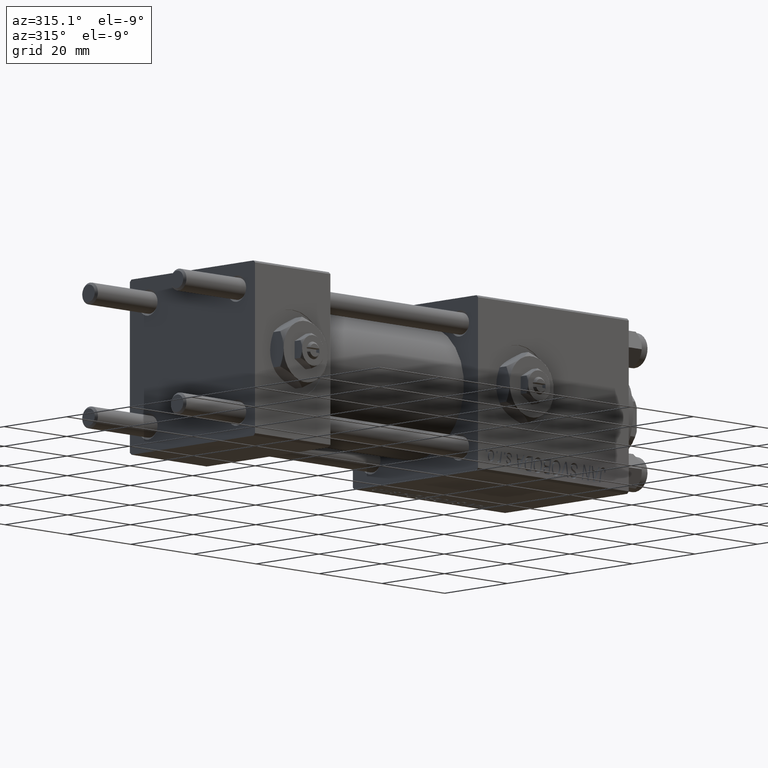
[diagram: clean part render]
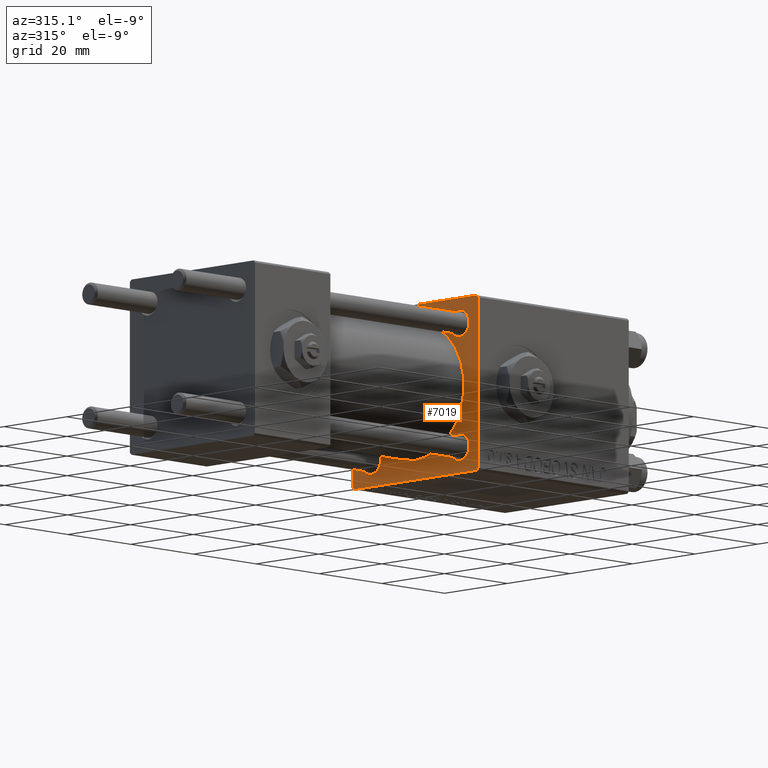
[diagram: same view with one face highlighted and labeled with its STEP entity id]
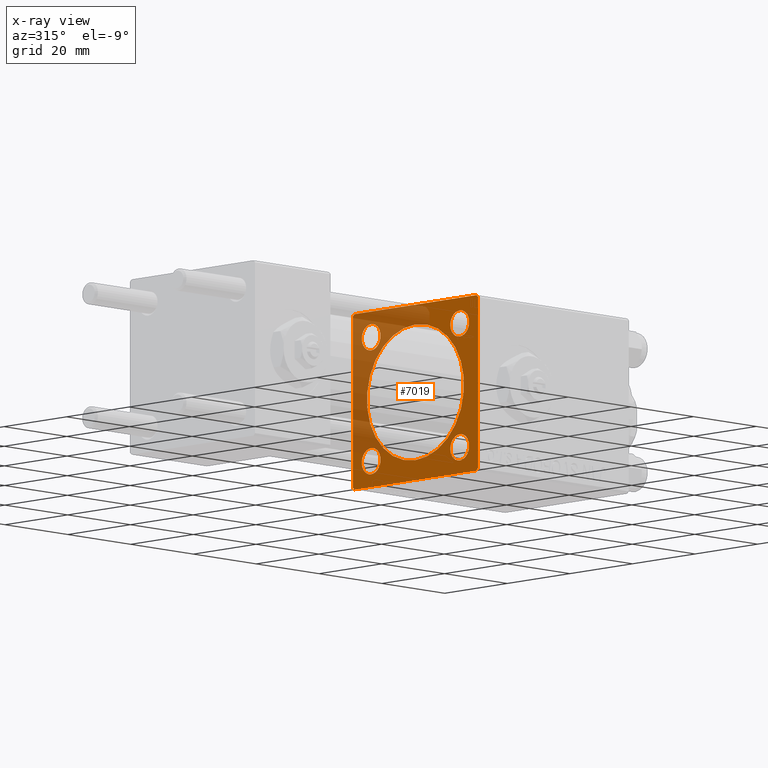
[diagram: x-ray of the same camera — body ghosted, the highlighted face saturated]
A machine part, auxiliary view. The second image highlights one B-rep face of the part: STEP entity #7019.
The next image is the same camera in x-ray: the body ghosted, the highlighted face saturated — about 37% of this face is hidden behind the body in this view.
In plain terms, the highlighted planar face has unit normal (-1, 0, 0).
Its self-contained STEP definition (entity closure, byte-faithful):
#448 = VERTEX_POINT ( 'NONE', #35024 ) ;
#474 = CARTESIAN_POINT ( 'NONE',  ( 71.00000000000001421, 0.000000000000000000, 0.000000000000000000 ) ) ;
#567 = CARTESIAN_POINT ( 'NONE',  ( 71.00000000000001421, -14.15000000000000036, 17.15000000000000568 ) ) ;
#714 = VECTOR ( 'NONE', #23946, 1000.000000000000000 ) ;
#786 = CARTESIAN_POINT ( 'NONE',  ( 71.00000000000001421, 19.74999999999999645, -19.74999999999999645 ) ) ;
#1168 = EDGE_CURVE ( 'NONE', #1655, #20145, #23216, .T. ) ;
#1187 = FACE_OUTER_BOUND ( 'NONE', #35015, .T. ) ;
#1655 = VERTEX_POINT ( 'NONE', #21031 ) ;
#1743 = EDGE_CURVE ( 'NONE', #8582, #1655, #32588, .T. ) ;
#1891 = AXIS2_PLACEMENT_3D ( 'NONE', #474, #51926, #15957 ) ;
#2912 = CIRCLE ( 'NONE', #29694, 15.50000000000000000 ) ;
#3056 = DIRECTION ( 'NONE',  ( 1.000000000000000000, 0.000000000000000000, 0.000000000000000000 ) ) ;
#4071 = VERTEX_POINT ( 'NONE', #13871 ) ;
#4143 = EDGE_CURVE ( 'NONE', #5210, #31174, #21702, .T. ) ;
#4344 = DIRECTION ( 'NONE',  ( 0.000000000000000000, 0.000000000000000000, 1.000000000000000000 ) ) ;
#4367 = CARTESIAN_POINT ( 'NONE',  ( 71.00000000000001421, 14.15000000000000036, 11.14999999999999858 ) ) ;
#4619 = DIRECTION ( 'NONE',  ( -0.000000000000000000, 0.000000000000000000, 1.000000000000000000 ) ) ;
#4828 = EDGE_LOOP ( 'NONE', ( #26816, #28573 ) ) ;
#5063 = ORIENTED_EDGE ( 'NONE', *, *, #37640, .F. ) ;
#5137 = CARTESIAN_POINT ( 'NONE',  ( 71.00000000000001421, 19.99999999999999645, 20.00000000000000000 ) ) ;
#5210 = VERTEX_POINT ( 'NONE', #4367 ) ;
#5384 = CARTESIAN_POINT ( 'NONE',  ( 71.00000000000001421, 0.000000000000000000, 0.000000000000000000 ) ) ;
#5505 = VECTOR ( 'NONE', #7812, 1000.000000000000000 ) ;
#5561 = ORIENTED_EDGE ( 'NONE', *, *, #1743, .T. ) ;
#5900 = AXIS2_PLACEMENT_3D ( 'NONE', #5384, #7594, #4619 ) ;
#6726 = VERTEX_POINT ( 'NONE', #24682 ) ;
#6954 = EDGE_CURVE ( 'NONE', #11228, #26744, #40260, .T. ) ;
#7005 = DIRECTION ( 'NONE',  ( 0.000000000000000000, 0.000000000000000000, 1.000000000000000000 ) ) ;
#7019 = ADVANCED_FACE ( 'NONE', ( #8554, #24556, #20631, #41309, #47469, #1187 ), #24811, .T. ) ;
#7051 = DIRECTION ( 'NONE',  ( 1.000000000000000000, 0.000000000000000000, 0.000000000000000000 ) ) ;
#7594 = DIRECTION ( 'NONE',  ( -1.000000000000000000, 0.000000000000000000, -0.000000000000000000 ) ) ;
#7727 = DIRECTION ( 'NONE',  ( 0.000000000000000000, 0.000000000000000000, 1.000000000000000000 ) ) ;
#7812 = DIRECTION ( 'NONE',  ( 0.000000000000000000, 0.000000000000000000, -1.000000000000000000 ) ) ;
#7928 = DIRECTION ( 'NONE',  ( 1.000000000000000000, 0.000000000000000000, 0.000000000000000000 ) ) ;
#8554 = FACE_BOUND ( 'NONE', #4828, .T. ) ;
#8582 = VERTEX_POINT ( 'NONE', #50975 ) ;
#8913 = CARTESIAN_POINT ( 'NONE',  ( 71.00000000000001421, 14.15000000000000036, -11.15000000000002522 ) ) ;
#9393 = ORIENTED_EDGE ( 'NONE', *, *, #31246, .F. ) ;
#9539 = ORIENTED_EDGE ( 'NONE', *, *, #21185, .T. ) ;
#10368 = VERTEX_POINT ( 'NONE', #37254 ) ;
#10406 = DIRECTION ( 'NONE',  ( 0.000000000000000000, 0.000000000000000000, 1.000000000000000000 ) ) ;
#10532 = CARTESIAN_POINT ( 'NONE',  ( 71.00000000000001421, 14.15000000000000036, -14.15000000000000036 ) ) ;
#10943 = DIRECTION ( 'NONE',  ( 1.000000000000000000, 0.000000000000000000, 0.000000000000000000 ) ) ;
#11172 = CARTESIAN_POINT ( 'NONE',  ( 71.00000000000001421, -14.15000000000000036, 11.14999999999999858 ) ) ;
#11228 = VERTEX_POINT ( 'NONE', #567 ) ;
#11597 = EDGE_CURVE ( 'NONE', #4071, #46011, #47364, .T. ) ;
#11933 = DIRECTION ( 'NONE',  ( 0.000000000000000000, -0.7071067811865376918, 0.7071067811865574537 ) ) ;
#12713 = VECTOR ( 'NONE', #21734, 1000.000000000000114 ) ;
#13146 = VERTEX_POINT ( 'NONE', #8913 ) ;
#13366 = EDGE_CURVE ( 'NONE', #18645, #36921, #31979, .T. ) ;
#13460 = CARTESIAN_POINT ( 'NONE',  ( 71.00000000000001421, -20.00000000000000355, 19.50000000000002487 ) ) ;
#13550 = CIRCLE ( 'NONE', #43762, 2.999999999999976463 ) ;
#13871 = CARTESIAN_POINT ( 'NONE',  ( 71.00000000000001421, 19.49999999999996803, 20.00000000000000000 ) ) ;
#14524 = ORIENTED_EDGE ( 'NONE', *, *, #26262, .T. ) ;
#14628 = LINE ( 'NONE', #22253, #12713 ) ;
#14968 = DIRECTION ( 'NONE',  ( 0.000000000000000000, 0.000000000000000000, 1.000000000000000000 ) ) ;
#15471 = CIRCLE ( 'NONE', #34746, 3.000000000000000888 ) ;
#15957 = DIRECTION ( 'NONE',  ( 0.000000000000000000, 0.000000000000000000, -1.000000000000000000 ) ) ;
#16309 = CARTESIAN_POINT ( 'NONE',  ( 71.00000000000001421, -14.15000000000000036, -14.15000000000000036 ) ) ;
#17250 = DIRECTION ( 'NONE',  ( 1.000000000000000000, 0.000000000000000000, 0.000000000000000000 ) ) ;
#18276 = CARTESIAN_POINT ( 'NONE',  ( 71.00000000000001421, -14.15000000000000036, -14.15000000000000036 ) ) ;
#18297 = AXIS2_PLACEMENT_3D ( 'NONE', #18276, #3056, #10406 ) ;
#18383 = AXIS2_PLACEMENT_3D ( 'NONE', #23058, #7051, #34855 ) ;
#18440 = EDGE_LOOP ( 'NONE', ( #22212, #28190 ) ) ;
#18645 = VERTEX_POINT ( 'NONE', #44261 ) ;
#18805 = CIRCLE ( 'NONE', #51498, 2.999999999999976463 ) ;
#19762 = ORIENTED_EDGE ( 'NONE', *, *, #13366, .T. ) ;
#19820 = CARTESIAN_POINT ( 'NONE',  ( 71.00000000000001421, -19.75000000000028066, -19.74999999999973355 ) ) ;
#19857 = CARTESIAN_POINT ( 'NONE',  ( 71.00000000000001421, 19.99999999999999645, -19.50000000000000000 ) ) ;
#20015 = CARTESIAN_POINT ( 'NONE',  ( 71.00000000000001421, 19.99999999999999645, -20.00000000000000000 ) ) ;
#20145 = VERTEX_POINT ( 'NONE', #24558 ) ;
#20289 = DIRECTION ( 'NONE',  ( 0.000000000000000000, 8.673617379884036705E-17, -1.000000000000000000 ) ) ;
#20425 = EDGE_CURVE ( 'NONE', #26744, #11228, #49843, .T. ) ;
#20606 = CARTESIAN_POINT ( 'NONE',  ( 71.00000000000001421, 14.15000000000000036, -14.15000000000000036 ) ) ;
#20631 = FACE_BOUND ( 'NONE', #23973, .T. ) ;
#20636 = CARTESIAN_POINT ( 'NONE',  ( 71.00000000000001421, 0.000000000000000000, 15.50000000000000000 ) ) ;
#20801 = CARTESIAN_POINT ( 'NONE',  ( 71.00000000000001421, 14.15000000000000036, 17.15000000000000568 ) ) ;
#21031 = CARTESIAN_POINT ( 'NONE',  ( 71.00000000000001421, -19.50000000000002487, -20.00000000000000000 ) ) ;
#21185 = EDGE_CURVE ( 'NONE', #36921, #18645, #2912, .T. ) ;
#21398 = DIRECTION ( 'NONE',  ( 0.000000000000000000, -1.000000000000000000, -8.673617379884035472E-17 ) ) ;
#21702 = CIRCLE ( 'NONE', #18383, 3.000000000000000888 ) ;
#21734 = DIRECTION ( 'NONE',  ( -0.000000000000000000, 0.7071067811865573427, 0.7071067811865376918 ) ) ;
#21747 = LINE ( 'NONE', #786, #42426 ) ;
#22212 = ORIENTED_EDGE ( 'NONE', *, *, #40611, .T. ) ;
#22253 = CARTESIAN_POINT ( 'NONE',  ( 71.00000000000001421, -19.74999999999973710, 19.75000000000028422 ) ) ;
#23058 = CARTESIAN_POINT ( 'NONE',  ( 71.00000000000001421, 14.15000000000000036, 14.15000000000000036 ) ) ;
#23216 = LINE ( 'NONE', #19820, #24974 ) ;
#23545 = CARTESIAN_POINT ( 'NONE',  ( 71.00000000000001421, 19.99999999999999645, 20.00000000000000000 ) ) ;
#23946 = DIRECTION ( 'NONE',  ( 0.000000000000000000, -1.000000000000000000, 0.000000000000000000 ) ) ;
#23973 = EDGE_LOOP ( 'NONE', ( #38779, #30077 ) ) ;
#24556 = FACE_BOUND ( 'NONE', #18440, .T. ) ;
#24558 = CARTESIAN_POINT ( 'NONE',  ( 71.00000000000001421, -20.00000000000000000, -19.50000000000001066 ) ) ;
#24682 = CARTESIAN_POINT ( 'NONE',  ( 71.00000000000001421, -14.15000000000000036, -17.14999999999997726 ) ) ;
#24695 = VECTOR ( 'NONE', #21398, 1000.000000000000000 ) ;
#24811 = PLANE ( 'NONE',  #5900 ) ;
#24974 = VECTOR ( 'NONE', #11933, 999.9999999999998863 ) ;
#26262 = EDGE_CURVE ( 'NONE', #46108, #8582, #21747, .T. ) ;
#26744 = VERTEX_POINT ( 'NONE', #11172 ) ;
#26816 = ORIENTED_EDGE ( 'NONE', *, *, #6954, .T. ) ;
#27139 = CARTESIAN_POINT ( 'NONE',  ( 71.00000000000001421, 19.74999999999971578, 19.75000000000026290 ) ) ;
#27765 = EDGE_CURVE ( 'NONE', #6726, #10368, #43309, .T. ) ;
#28190 = ORIENTED_EDGE ( 'NONE', *, *, #4143, .T. ) ;
#28573 = ORIENTED_EDGE ( 'NONE', *, *, #20425, .T. ) ;
#28983 = AXIS2_PLACEMENT_3D ( 'NONE', #16309, #7928, #48073 ) ;
#29247 = EDGE_CURVE ( 'NONE', #51367, #45595, #14628, .T. ) ;
#29258 = LINE ( 'NONE', #5137, #24695 ) ;
#29694 = AXIS2_PLACEMENT_3D ( 'NONE', #33265, #17250, #49283 ) ;
#30077 = ORIENTED_EDGE ( 'NONE', *, *, #30791, .T. ) ;
#30205 = AXIS2_PLACEMENT_3D ( 'NONE', #30935, #42990, #38544 ) ;
#30791 = EDGE_CURVE ( 'NONE', #448, #13146, #13550, .T. ) ;
#30822 = DIRECTION ( 'NONE',  ( 0.000000000000000000, 0.7071067811865574537, -0.7071067811865376918 ) ) ;
#30935 = CARTESIAN_POINT ( 'NONE',  ( 71.00000000000001421, -14.15000000000000036, 14.15000000000000036 ) ) ;
#31174 = VERTEX_POINT ( 'NONE', #20801 ) ;
#31246 = EDGE_CURVE ( 'NONE', #51367, #20145, #36533, .T. ) ;
#31682 = LINE ( 'NONE', #23545, #5505 ) ;
#31979 = CIRCLE ( 'NONE', #1891, 15.50000000000000000 ) ;
#32588 = LINE ( 'NONE', #20015, #714 ) ;
#32592 = ORIENTED_EDGE ( 'NONE', *, *, #29247, .T. ) ;
#32605 = CARTESIAN_POINT ( 'NONE',  ( 71.00000000000001421, -20.00000000000000355, 19.99999999999999645 ) ) ;
#33265 = CARTESIAN_POINT ( 'NONE',  ( 71.00000000000001421, 0.000000000000000000, 0.000000000000000000 ) ) ;
#34288 = CARTESIAN_POINT ( 'NONE',  ( 71.00000000000001421, 19.99999999999999645, 19.49999999999998579 ) ) ;
#34746 = AXIS2_PLACEMENT_3D ( 'NONE', #46887, #10943, #7005 ) ;
#34855 = DIRECTION ( 'NONE',  ( 0.000000000000000000, 0.000000000000000000, 1.000000000000000000 ) ) ;
#34862 = CIRCLE ( 'NONE', #28983, 2.999999999999976463 ) ;
#35015 = EDGE_LOOP ( 'NONE', ( #5561, #43236, #9393, #32592, #5063, #41106, #37738, #14524 ) ) ;
#35024 = CARTESIAN_POINT ( 'NONE',  ( 71.00000000000001421, 14.15000000000000036, -17.14999999999997726 ) ) ;
#35788 = CARTESIAN_POINT ( 'NONE',  ( 71.00000000000001421, -14.15000000000000036, 14.15000000000000036 ) ) ;
#36313 = EDGE_CURVE ( 'NONE', #13146, #448, #18805, .T. ) ;
#36483 = CARTESIAN_POINT ( 'NONE',  ( 71.00000000000001421, -19.50000000000001776, 19.99999999999999645 ) ) ;
#36533 = LINE ( 'NONE', #32605, #43796 ) ;
#36921 = VERTEX_POINT ( 'NONE', #20636 ) ;
#36971 = DIRECTION ( 'NONE',  ( -0.000000000000000000, -0.7071067811865474617, -0.7071067811865474617 ) ) ;
#37254 = CARTESIAN_POINT ( 'NONE',  ( 71.00000000000001421, -14.15000000000000036, -11.15000000000002522 ) ) ;
#37640 = EDGE_CURVE ( 'NONE', #4071, #45595, #29258, .T. ) ;
#37738 = ORIENTED_EDGE ( 'NONE', *, *, #43224, .T. ) ;
#38378 = EDGE_LOOP ( 'NONE', ( #9539, #19762 ) ) ;
#38466 = ORIENTED_EDGE ( 'NONE', *, *, #44510, .T. ) ;
#38544 = DIRECTION ( 'NONE',  ( 0.000000000000000000, 0.000000000000000000, 1.000000000000000000 ) ) ;
#38779 = ORIENTED_EDGE ( 'NONE', *, *, #36313, .T. ) ;
#38844 = DIRECTION ( 'NONE',  ( 1.000000000000000000, 0.000000000000000000, 0.000000000000000000 ) ) ;
#40260 = CIRCLE ( 'NONE', #30205, 3.000000000000004441 ) ;
#40282 = DIRECTION ( 'NONE',  ( 1.000000000000000000, 0.000000000000000000, 0.000000000000000000 ) ) ;
#40497 = DIRECTION ( 'NONE',  ( 1.000000000000000000, 0.000000000000000000, 0.000000000000000000 ) ) ;
#40611 = EDGE_CURVE ( 'NONE', #31174, #5210, #15471, .T. ) ;
#41106 = ORIENTED_EDGE ( 'NONE', *, *, #11597, .T. ) ;
#41309 = FACE_BOUND ( 'NONE', #48035, .T. ) ;
#42426 = VECTOR ( 'NONE', #36971, 1000.000000000000114 ) ;
#42990 = DIRECTION ( 'NONE',  ( 1.000000000000000000, 0.000000000000000000, 0.000000000000000000 ) ) ;
#43224 = EDGE_CURVE ( 'NONE', #46011, #46108, #31682, .T. ) ;
#43236 = ORIENTED_EDGE ( 'NONE', *, *, #1168, .T. ) ;
#43309 = CIRCLE ( 'NONE', #18297, 2.999999999999976463 ) ;
#43762 = AXIS2_PLACEMENT_3D ( 'NONE', #20606, #40282, #4344 ) ;
#43796 = VECTOR ( 'NONE', #20289, 1000.000000000000000 ) ;
#44261 = CARTESIAN_POINT ( 'NONE',  ( 71.00000000000001421, 1.898202538678397557E-15, -15.50000000000000000 ) ) ;
#44510 = EDGE_CURVE ( 'NONE', #10368, #6726, #34862, .T. ) ;
#44590 = VECTOR ( 'NONE', #30822, 999.9999999999998863 ) ;
#44770 = AXIS2_PLACEMENT_3D ( 'NONE', #35788, #40497, #7727 ) ;
#45595 = VERTEX_POINT ( 'NONE', #36483 ) ;
#46011 = VERTEX_POINT ( 'NONE', #34288 ) ;
#46071 = ORIENTED_EDGE ( 'NONE', *, *, #27765, .T. ) ;
#46108 = VERTEX_POINT ( 'NONE', #19857 ) ;
#46887 = CARTESIAN_POINT ( 'NONE',  ( 71.00000000000001421, 14.15000000000000036, 14.15000000000000036 ) ) ;
#47364 = LINE ( 'NONE', #27139, #44590 ) ;
#47469 = FACE_BOUND ( 'NONE', #38378, .T. ) ;
#48035 = EDGE_LOOP ( 'NONE', ( #38466, #46071 ) ) ;
#48073 = DIRECTION ( 'NONE',  ( 0.000000000000000000, 0.000000000000000000, 1.000000000000000000 ) ) ;
#49283 = DIRECTION ( 'NONE',  ( 0.000000000000000000, 0.000000000000000000, -1.000000000000000000 ) ) ;
#49843 = CIRCLE ( 'NONE', #44770, 3.000000000000004441 ) ;
#50975 = CARTESIAN_POINT ( 'NONE',  ( 71.00000000000001421, 19.49999999999999645, -20.00000000000000000 ) ) ;
#51367 = VERTEX_POINT ( 'NONE', #13460 ) ;
#51498 = AXIS2_PLACEMENT_3D ( 'NONE', #10532, #38844, #14968 ) ;
#51926 = DIRECTION ( 'NONE',  ( 1.000000000000000000, 0.000000000000000000, 0.000000000000000000 ) ) ;